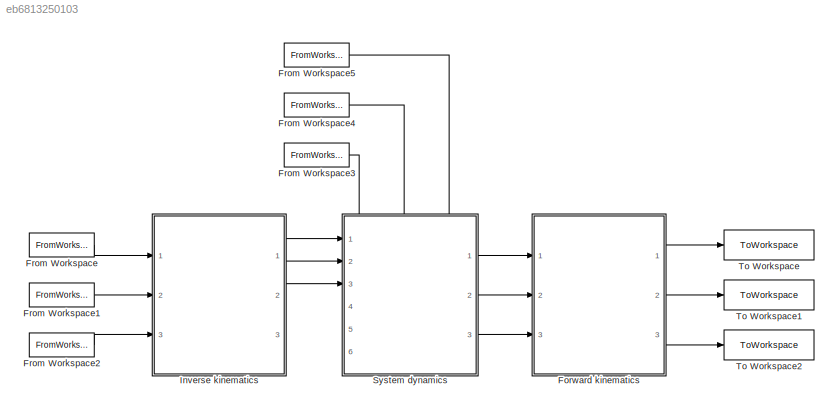
MODEL slx_eb6813250103
KIND model
CONFIG AbsTol = auto
CONFIG EnableMultiTasking = off
CONFIG FixedStep = auto
CONFIG MaxStep = auto
CONFIG MinStep = auto
CONFIG RelTol = 1e-3
CONFIG SampleTimeConstraint = Unconstrained
CONFIG SolverName = VariableStepAuto
CONFIG StartTime = 0.0
CONFIG StopTime = 10.0
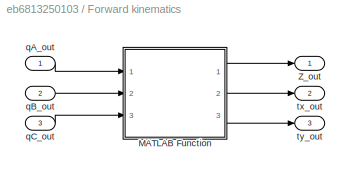
BLOCK [SubSystem] Forward kinematics
  Ports = [3, 3]
  RequestExecContextInheritance = off
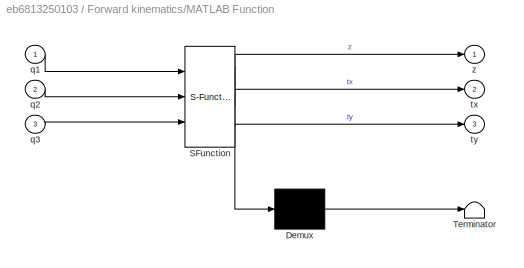
BLOCK [SubSystem] Forward kinematics/MATLAB Function
  ErrorFcn = Stateflow.Translate.translate
  PermitHierarchicalResolution = ExplicitOnly
  Ports = [3, 3]
  RequestExecContextInheritance = off
  SFBlockType = MATLAB Function
  TreatAsAtomicUnit = on
BLOCK [Demux] Forward kinematics/MATLAB Function/ Demux 
  Outputs = 1
  Ports = [1, 1]
BLOCK [S-Function] Forward kinematics/MATLAB Function/ SFunction 
  EnableBusSupport = on
  FunctionName = sf_sfun
  PortCounts = [3 4]
  Ports = [3, 4]
  SFcnIsStateOwnerBlock = off
  SFunctionDeploymentMode = off
  Tag = Stateflow S-Function 1
BLOCK [Terminator] Forward kinematics/MATLAB Function/ Terminator 
BLOCK [Inport] Forward kinematics/MATLAB Function/q1
BLOCK [Inport] Forward kinematics/MATLAB Function/q2
  Port = 2
BLOCK [Inport] Forward kinematics/MATLAB Function/q3
  Port = 3
BLOCK [Outport] Forward kinematics/MATLAB Function/tx
  Port = 2
BLOCK [Outport] Forward kinematics/MATLAB Function/ty
  Port = 3
BLOCK [Outport] Forward kinematics/MATLAB Function/z
BLOCK [Outport] Forward kinematics/Z_out
BLOCK [Inport] Forward kinematics/qA_out
BLOCK [Inport] Forward kinematics/qB_out
  Port = 2
BLOCK [Inport] Forward kinematics/qC_out
  Port = 3
BLOCK [Outport] Forward kinematics/tx_out
  Port = 2
BLOCK [Outport] Forward kinematics/ty_out
  Port = 3
BLOCK [FromWorkspace] From Workspace
  SampleTime = 0.2
  VariableName = Z_in
BLOCK [FromWorkspace] From Workspace1
  SampleTime = 0.2
  VariableName = tx_in
BLOCK [FromWorkspace] From Workspace2
  SampleTime = 0.2
  VariableName = ty_in
BLOCK [FromWorkspace] From Workspace3
  VariableName = qAinit
BLOCK [FromWorkspace] From Workspace4
  VariableName = qBinit
BLOCK [FromWorkspace] From Workspace5
  VariableName = qCinit
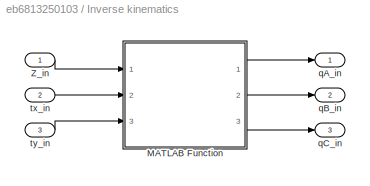
BLOCK [SubSystem] Inverse kinematics
  Ports = [3, 3]
  RequestExecContextInheritance = off
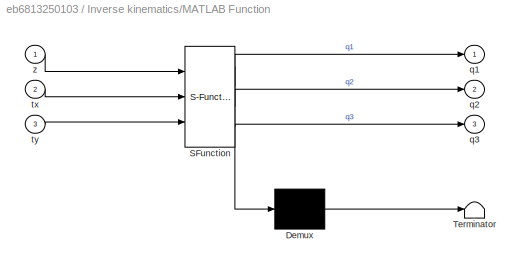
BLOCK [SubSystem] Inverse kinematics/MATLAB Function
  ErrorFcn = Stateflow.Translate.translate
  PermitHierarchicalResolution = ExplicitOnly
  Ports = [3, 3]
  RequestExecContextInheritance = off
  SFBlockType = MATLAB Function
  TreatAsAtomicUnit = on
BLOCK [Demux] Inverse kinematics/MATLAB Function/ Demux 
  Outputs = 1
  Ports = [1, 1]
BLOCK [S-Function] Inverse kinematics/MATLAB Function/ SFunction 
  EnableBusSupport = on
  FunctionName = sf_sfun
  PortCounts = [3 4]
  Ports = [3, 4]
  SFcnIsStateOwnerBlock = off
  SFunctionDeploymentMode = off
  Tag = Stateflow S-Function 2
BLOCK [Terminator] Inverse kinematics/MATLAB Function/ Terminator 
BLOCK [Outport] Inverse kinematics/MATLAB Function/q1
BLOCK [Outport] Inverse kinematics/MATLAB Function/q2
  Port = 2
BLOCK [Outport] Inverse kinematics/MATLAB Function/q3
  Port = 3
BLOCK [Inport] Inverse kinematics/MATLAB Function/tx
  Port = 2
BLOCK [Inport] Inverse kinematics/MATLAB Function/ty
  Port = 3
BLOCK [Inport] Inverse kinematics/MATLAB Function/z
BLOCK [Inport] Inverse kinematics/Z_in
BLOCK [Outport] Inverse kinematics/qA_in
BLOCK [Outport] Inverse kinematics/qB_in
  Port = 2
BLOCK [Outport] Inverse kinematics/qC_in
  Port = 3
BLOCK [Inport] Inverse kinematics/tx_in
  Port = 2
BLOCK [Inport] Inverse kinematics/ty_in
  Port = 3
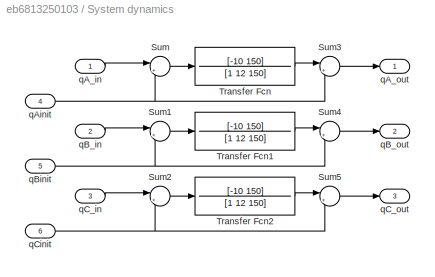
BLOCK [SubSystem] System dynamics
  PortSchema = {"entries":[{"content":{"sides":[{"content":{"connectorIds":["In1","In2","In3"]},"type":"ConnectorPlacement.EquallySpacedRectSide","uuid":"c24ee354-3a75-4f1b-83ec-264891b7fa65"},{"content":{"connectorIds":["Out1","Out2","Out3"],"side":"RIGHT"},"type":"ConnectorPlacement.EquallySpacedRectSide","uuid":"1c3c61c0-7ee5-4706-8614-71b4a13f5af9"},{"content":{"connectorIds":["In4","In5","In6"],"side":"TOP"...<+283ch>
  Ports = [6, 3]
  RequestExecContextInheritance = off
BLOCK [Sum] System dynamics/Sum
  Inputs = |+-
  Ports = [2, 1]
BLOCK [Sum] System dynamics/Sum1
  Inputs = |+-
  Ports = [2, 1]
BLOCK [Sum] System dynamics/Sum2
  Inputs = |+-
  Ports = [2, 1]
BLOCK [Sum] System dynamics/Sum3
  Inputs = |++
  Ports = [2, 1]
BLOCK [Sum] System dynamics/Sum4
  Inputs = |++
  Ports = [2, 1]
BLOCK [Sum] System dynamics/Sum5
  Inputs = |++
  Ports = [2, 1]
BLOCK [TransferFcn] System dynamics/Transfer Fcn
  Denominator = [1 12 150]
  Numerator = [-10 150]
BLOCK [TransferFcn] System dynamics/Transfer Fcn1
  Denominator = [1 12 150]
  Numerator = [-10 150]
BLOCK [TransferFcn] System dynamics/Transfer Fcn2
  Denominator = [1 12 150]
  Numerator = [-10 150]
BLOCK [Inport] System dynamics/qA_in
BLOCK [Outport] System dynamics/qA_out
BLOCK [Inport] System dynamics/qAinit
  Port = 4
BLOCK [Inport] System dynamics/qB_in
  Port = 2
BLOCK [Outport] System dynamics/qB_out
  Port = 2
BLOCK [Inport] System dynamics/qBinit
  Port = 5
BLOCK [Inport] System dynamics/qC_in
  Port = 3
BLOCK [Outport] System dynamics/qC_out
  Port = 3
BLOCK [Inport] System dynamics/qCinit
  Port = 6
BLOCK [ToWorkspace] To Workspace
  FixptAsFi = on
  MaxDataPoints = inf
  Ports = [1]
  SampleTime = -1
  SaveFormat = Timeseries
  VariableName = Z_out
BLOCK [ToWorkspace] To Workspace1
  FixptAsFi = on
  MaxDataPoints = inf
  Ports = [1]
  SampleTime = -1
  SaveFormat = Timeseries
  VariableName = tx_out
BLOCK [ToWorkspace] To Workspace2
  FixptAsFi = on
  MaxDataPoints = inf
  Ports = [1]
  SampleTime = -1
  SaveFormat = Timeseries
  VariableName = ty_out
LINE Forward kinematics/MATLAB Function:1 -> Forward kinematics/Z_out:1
LINE Forward kinematics/MATLAB Function:2 -> Forward kinematics/tx_out:1
LINE Forward kinematics/MATLAB Function:3 -> Forward kinematics/ty_out:1
LINE Forward kinematics/qA_out:1 -> Forward kinematics/MATLAB Function:1
LINE Forward kinematics/qB_out:1 -> Forward kinematics/MATLAB Function:2
LINE Forward kinematics/qC_out:1 -> Forward kinematics/MATLAB Function:3
LINE Forward kinematics:1 -> To Workspace:1
LINE Forward kinematics:2 -> To Workspace1:1
LINE Forward kinematics:3 -> To Workspace2:1
LINE From Workspace1:1 -> Inverse kinematics:2
LINE From Workspace2:1 -> Inverse kinematics:3
LINE From Workspace3:1 -> System dynamics:4
LINE From Workspace4:1 -> System dynamics:5
LINE From Workspace5:1 -> System dynamics:6
LINE From Workspace:1 -> Inverse kinematics:1
LINE Inverse kinematics/MATLAB Function:1 -> Inverse kinematics/qA_in:1
LINE Inverse kinematics/MATLAB Function:2 -> Inverse kinematics/qB_in:1
LINE Inverse kinematics/MATLAB Function:3 -> Inverse kinematics/qC_in:1
LINE Inverse kinematics/Z_in:1 -> Inverse kinematics/MATLAB Function:1
LINE Inverse kinematics/tx_in:1 -> Inverse kinematics/MATLAB Function:2
LINE Inverse kinematics/ty_in:1 -> Inverse kinematics/MATLAB Function:3
LINE Inverse kinematics:1 -> System dynamics:1
LINE Inverse kinematics:2 -> System dynamics:2
LINE Inverse kinematics:3 -> System dynamics:3
LINE System dynamics/Sum1:1 -> System dynamics/Transfer Fcn1:1
LINE System dynamics/Sum2:1 -> System dynamics/Transfer Fcn2:1
LINE System dynamics/Sum3:1 -> System dynamics/qA_out:1
LINE System dynamics/Sum4:1 -> System dynamics/qB_out:1
LINE System dynamics/Sum5:1 -> System dynamics/qC_out:1
LINE System dynamics/Sum:1 -> System dynamics/Transfer Fcn:1
LINE System dynamics/Transfer Fcn1:1 -> System dynamics/Sum4:1
LINE System dynamics/Transfer Fcn2:1 -> System dynamics/Sum5:1
LINE System dynamics/Transfer Fcn:1 -> System dynamics/Sum3:1
LINE System dynamics/qA_in:1 -> System dynamics/Sum:1
NET System dynamics/qAinit:1 -> System dynamics/Sum3:2, System dynamics/Sum:2
LINE System dynamics/qB_in:1 -> System dynamics/Sum1:1
NET System dynamics/qBinit:1 -> System dynamics/Sum1:2, System dynamics/Sum4:2
LINE System dynamics/qC_in:1 -> System dynamics/Sum2:1
NET System dynamics/qCinit:1 -> System dynamics/Sum2:2, System dynamics/Sum5:2
LINE System dynamics:1 -> Forward kinematics:1
LINE System dynamics:2 -> Forward kinematics:2
LINE System dynamics:3 -> Forward kinematics:3
note: NET lines group one-source signal fan-out (src -> all destinations, sorted); 1:1 wires keep LINE
CHART Forward kinematics/MATLAB Function states=1 transitions=1
  STATE_LABEL 'eML_blk_kernel()'
  STATE_LABEL 'SCRIPT:\nfunction [z, tx, ty] = fwd_kin(q1, q2, q3)\n%%\n% This function computes the inverse kinematics of the bouncing table given\n% the desired end effector height (z), and the angles (tx and ty) that the\n% end effector makes with the x and y axes, respectively. It uses a lookup\n% table of precomputed joint angles (qA, qB, and qC) and corresponding\n% end effector positions (Z, theta_x, and theta_y...<+1378ch>'
CHART Inverse kinematics/MATLAB Function states=1 transitions=1
  STATE_LABEL 'eML_blk_kernel()'
  STATE_LABEL 'SCRIPT:\nfunction [q1, q2, q3] = inv_kin(z, tx, ty)\n%%\n% This function computes the inverse kinematics of the bouncing table given\n% the desired end effector height (z), and the angles (tx and ty) that the\n% end effector makes with the x and y axes, respectively. It uses a lookup\n% table of precomputed joint angles (qA, qB, and qC) and corresponding\n% end effector positions (Z, theta_x, and theta_y...<+1378ch>'
CHART  states=0 transitions=0
CHART  states=0 transitions=0
